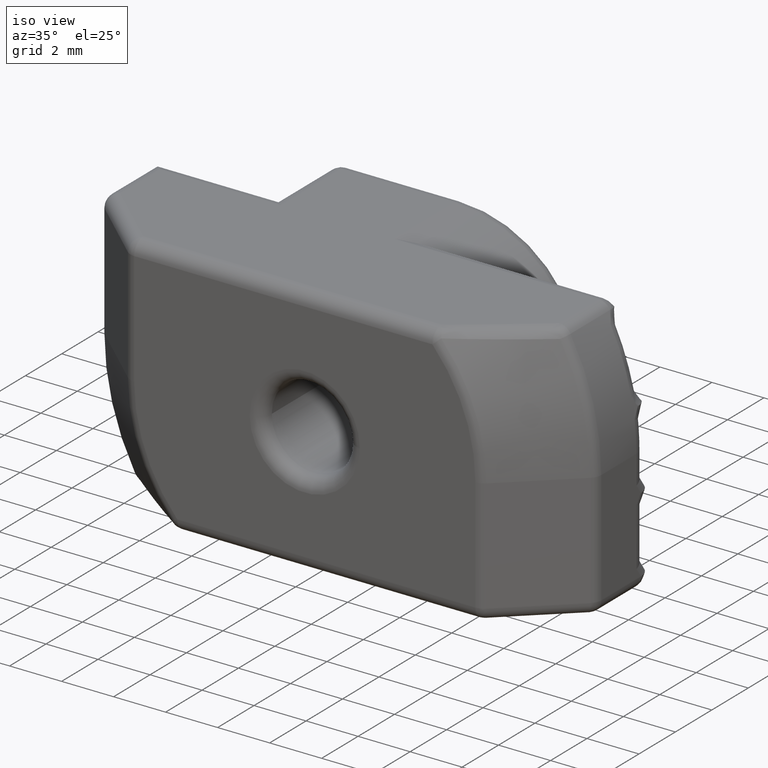
[diagram: clean part render]
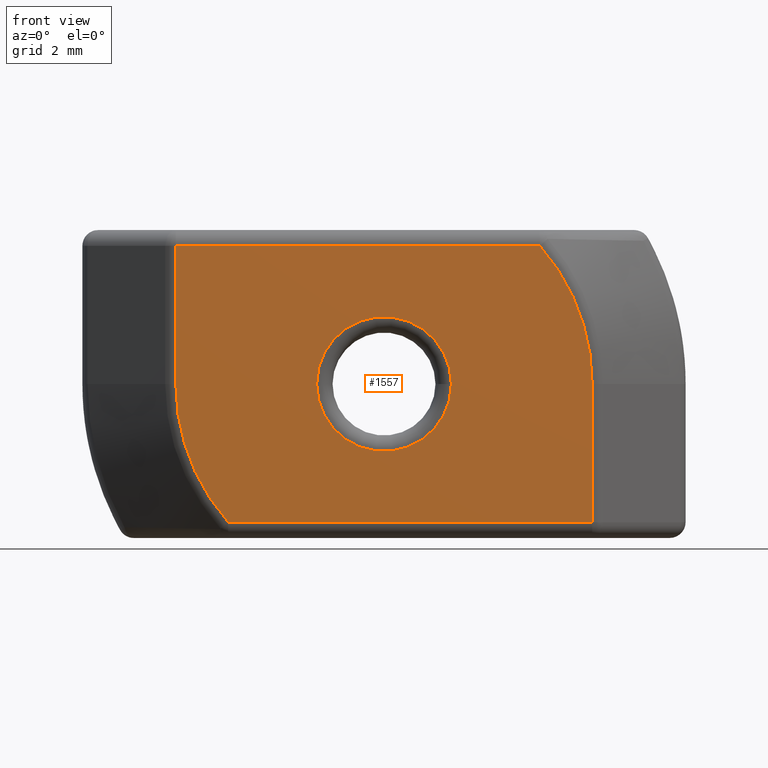
[diagram: tour spotlight — one face highlighted and labeled with its STEP entity id]
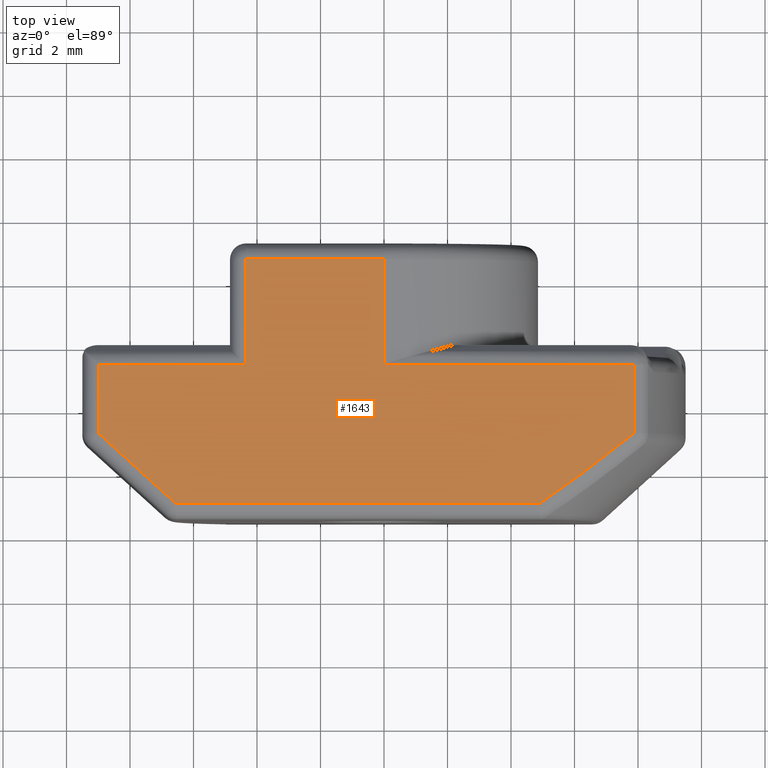
[diagram: tour spotlight — one face highlighted and labeled with its STEP entity id]
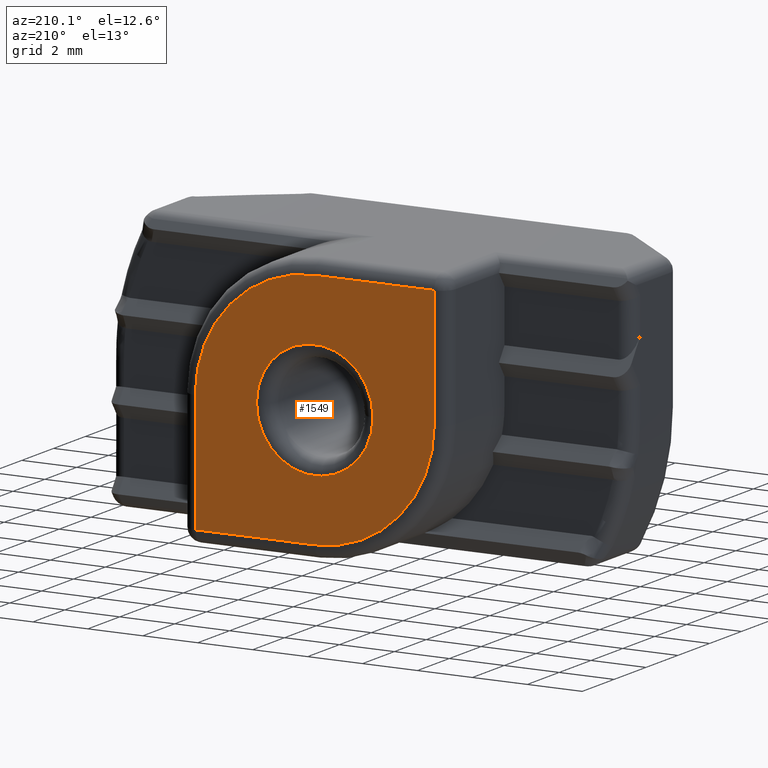
[diagram: tour spotlight — one face highlighted and labeled with its STEP entity id]
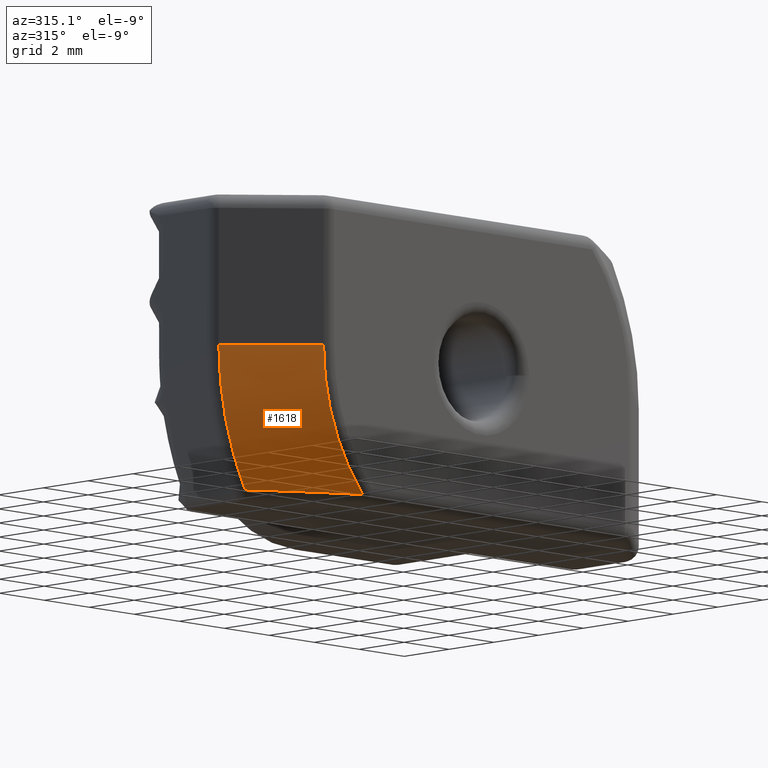
[diagram: tour spotlight — one face highlighted and labeled with its STEP entity id]
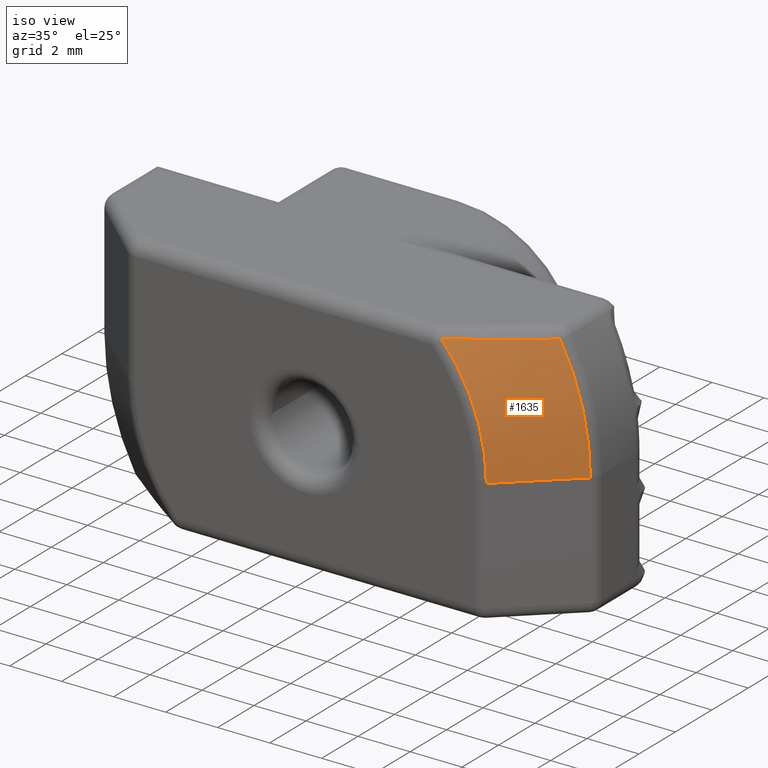
[diagram: tour spotlight — one face highlighted and labeled with its STEP entity id]
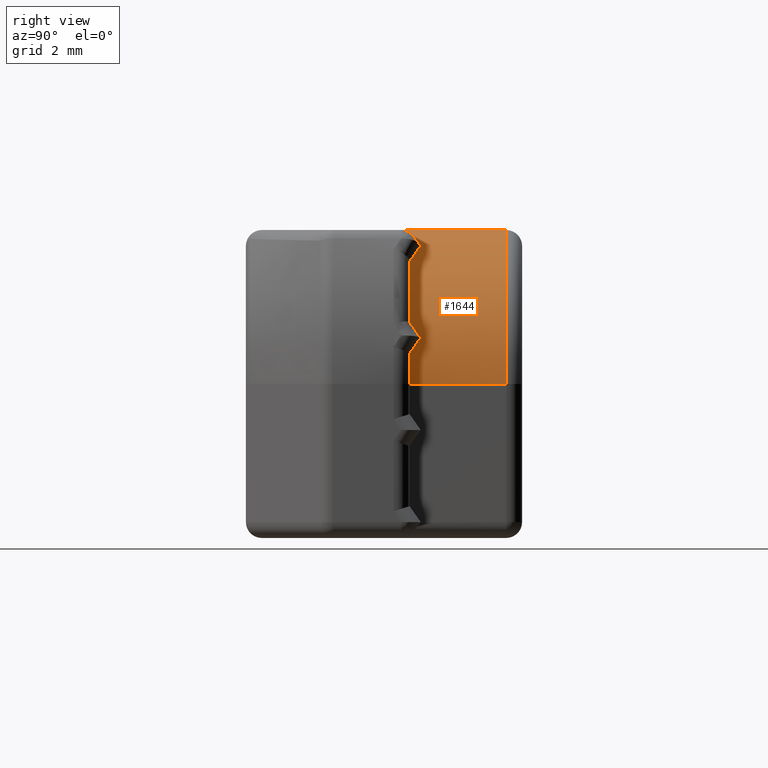
[diagram: tour spotlight — one face highlighted and labeled with its STEP entity id]
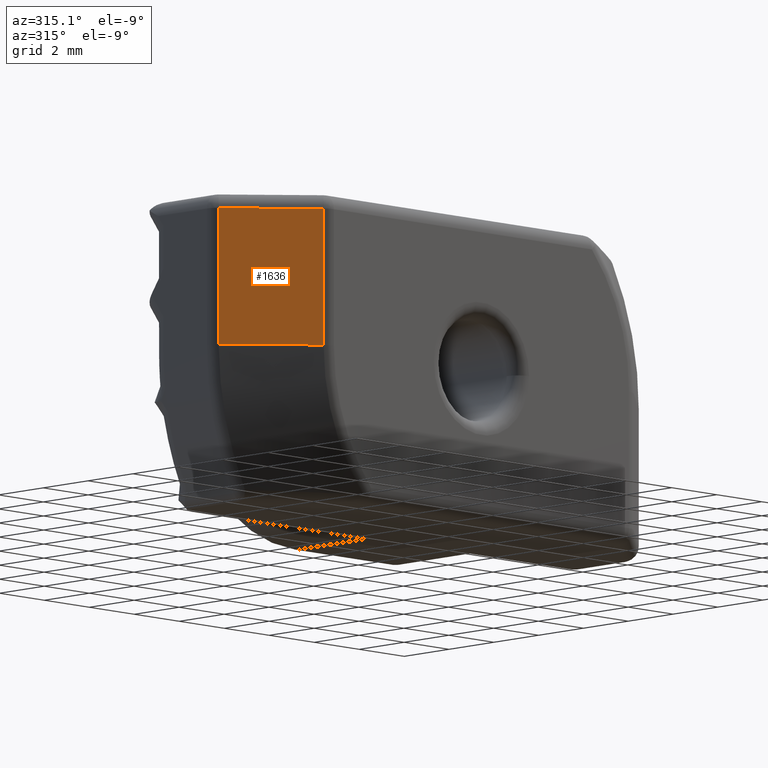
[diagram: tour spotlight — one face highlighted and labeled with its STEP entity id]
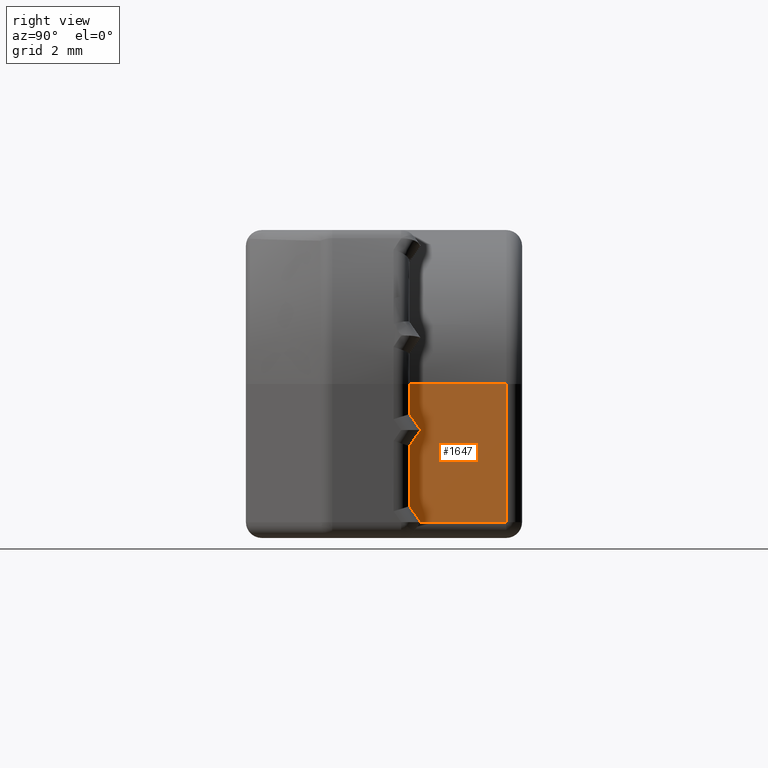
[diagram: tour spotlight — one face highlighted and labeled with its STEP entity id]
A machine part: a face-by-face anatomy tour. The part has 104 B-rep faces; the first image is the clean iso view, then the 8 largest visible faces are spotlighted one at a time (largest first), each with its STEP entity span.

Face 1 — front view, entity #1557. In plain terms, the highlighted planar face has unit normal (0, -1, 0).
Definition (entity closure, byte-faithful):
#70=FACE_BOUND('',#311,.T.);
#77=CIRCLE('',#1678,2.121);
#78=CIRCLE('',#1680,6.55669656263408);
#79=CIRCLE('',#1681,6.55669656263408);
#163=PLANE('',#1679);
#202=FACE_OUTER_BOUND('',#310,.T.);
#310=EDGE_LOOP('',(#1085,#1086,#1087,#1088,#1089,#1090));
#311=EDGE_LOOP('',(#1091));
#426=LINE('',#2463,#527);
#427=LINE('',#2467,#528);
#428=LINE('',#2469,#529);
#429=LINE('',#2472,#530);
#527=VECTOR('',#1943,4.35);
#528=VECTOR('',#1946,11.4625879000423);
#529=VECTOR('',#1947,4.35);
#530=VECTOR('',#1950,11.4625879000423);
#674=VERTEX_POINT('',#2458);
#675=VERTEX_POINT('',#2461);
#676=VERTEX_POINT('',#2462);
#677=VERTEX_POINT('',#2464);
#678=VERTEX_POINT('',#2466);
#679=VERTEX_POINT('',#2468);
#680=VERTEX_POINT('',#2470);
#824=EDGE_CURVE('',#674,#674,#77,.T.);
#825=EDGE_CURVE('',#675,#676,#426,.T.);
#826=EDGE_CURVE('',#677,#675,#78,.T.);
#827=EDGE_CURVE('',#678,#677,#427,.T.);
#828=EDGE_CURVE('',#679,#678,#428,.T.);
#829=EDGE_CURVE('',#680,#679,#79,.T.);
#830=EDGE_CURVE('',#676,#680,#429,.T.);
#1085=ORIENTED_EDGE('',*,*,#825,.F.);
#1086=ORIENTED_EDGE('',*,*,#826,.F.);
#1087=ORIENTED_EDGE('',*,*,#827,.F.);
#1088=ORIENTED_EDGE('',*,*,#828,.F.);
#1089=ORIENTED_EDGE('',*,*,#829,.F.);
#1090=ORIENTED_EDGE('',*,*,#830,.F.);
#1091=ORIENTED_EDGE('',*,*,#824,.F.);
#1557=ADVANCED_FACE('',(#202,#70),#163,.T.);
#1678=AXIS2_PLACEMENT_3D('',#2459,#1939,#1940);
#1679=AXIS2_PLACEMENT_3D('',#2460,#1941,#1942);
#1680=AXIS2_PLACEMENT_3D('',#2465,#1944,#1945);
#1681=AXIS2_PLACEMENT_3D('',#2471,#1948,#1949);
#1939=DIRECTION('center_axis',(0.,-1.,0.));
#1940=DIRECTION('ref_axis',(-1.,0.,0.));
#1941=DIRECTION('center_axis',(0.,-1.,0.));
#1942=DIRECTION('ref_axis',(1.,0.,0.));
#1943=DIRECTION('',(0.,0.,-1.));
#1944=DIRECTION('center_axis',(0.,1.,0.));
#1945=DIRECTION('ref_axis',(0.920735528751524,0.,0.390187244915376));
#1946=DIRECTION('',(1.,0.,0.));
#1947=DIRECTION('',(0.,0.,1.));
#1948=DIRECTION('center_axis',(0.,1.,0.));
#1949=DIRECTION('ref_axis',(-0.920735528751524,0.,-0.390187244915376));
#1950=DIRECTION('',(-1.,0.,0.));
#2458=CARTESIAN_POINT('',(2.121,-5.5,1.6475263668806E-15));
#2459=CARTESIAN_POINT('Origin',(1.66533453693773E-15,-5.5,1.38777878078145E-15));
#2460=CARTESIAN_POINT('Origin',(-6.75,-5.5,0.));
#2461=CARTESIAN_POINT('',(6.55669656263408,-5.5,0.));
#2462=CARTESIAN_POINT('',(6.55669656263408,-5.5,-4.35));
#2463=CARTESIAN_POINT('',(6.55669656263408,-5.5,0.));
#2464=CARTESIAN_POINT('',(4.90589133740827,-5.5,4.35));
#2465=CARTESIAN_POINT('Origin',(0.,-5.5,0.));
#2466=CARTESIAN_POINT('',(-6.55669656263408,-5.5,4.35));
#2467=CARTESIAN_POINT('',(-3.375,-5.5,4.35));
#2468=CARTESIAN_POINT('',(-6.55669656263408,-5.5,-2.77555756156289E-16));
#2469=CARTESIAN_POINT('',(-6.55669656263408,-5.5,0.));
#2470=CARTESIAN_POINT('',(-4.90589133740827,-5.5,-4.35));
#2471=CARTESIAN_POINT('Origin',(0.,-5.5,0.));
#2472=CARTESIAN_POINT('',(-3.375,-5.5,-4.35));

Face 2 — top view, entity #1643. In plain terms, the highlighted planar face has unit normal (0, 0, 1).
Definition (entity closure, byte-faithful):
#40=B_SPLINE_CURVE_WITH_KNOTS('',3,(#2794,#2795,#2796,#2797),
 .UNSPECIFIED.,.F.,.F.,(4,4),(-0.560943769347797,-0.189735518197095),
 .UNSPECIFIED.);
#186=PLANE('',#1852);
#288=FACE_OUTER_BOUND('',#397,.T.);
#397=EDGE_LOOP('',(#1463,#1464,#1465,#1466,#1467,#1468,#1469,#1470,#1471,
#1472));
#425=LINE('',#2455,#526);
#438=LINE('',#2652,#539);
#440=LINE('',#2735,#541);
#443=LINE('',#2752,#544);
#456=LINE('',#2839,#557);
#460=LINE('',#2886,#561);
#461=LINE('',#2888,#562);
#463=LINE('',#2957,#564);
#500=LINE('',#3293,#601);
#526=VECTOR('',#1934,2.16848727615338);
#539=VECTOR('',#1991,4.65);
#541=VECTOR('',#2053,7.87892759200134);
#544=VECTOR('',#2076,4.35);
#557=VECTOR('',#2153,2.16848727615342);
#561=VECTOR('',#2173,11.4625879000905);
#562=VECTOR('',#2176,3.31032778078669);
#564=VECTOR('',#2184,3.30202880640377);
#601=VECTOR('',#2363,3.31032778078669);
#672=VERTEX_POINT('',#2452);
#673=VERTEX_POINT('',#2454);
#703=VERTEX_POINT('',#2651);
#708=VERTEX_POINT('',#2663);
#709=VERTEX_POINT('',#2668);
#714=VERTEX_POINT('',#2714);
#718=VERTEX_POINT('',#2723);
#720=VERTEX_POINT('',#2728);
#724=VERTEX_POINT('',#2748);
#728=VERTEX_POINT('',#2768);
#822=EDGE_CURVE('',#672,#673,#425,.T.);
#857=EDGE_CURVE('',#673,#703,#438,.T.);
#883=EDGE_CURVE('',#720,#718,#440,.T.);
#892=EDGE_CURVE('',#709,#724,#443,.T.);
#903=EDGE_CURVE('',#728,#714,#40,.T.);
#925=EDGE_CURVE('',#718,#728,#456,.T.);
#934=EDGE_CURVE('',#714,#708,#460,.T.);
#935=EDGE_CURVE('',#703,#709,#461,.T.);
#942=EDGE_CURVE('',#708,#672,#463,.T.);
#1023=EDGE_CURVE('',#724,#720,#500,.T.);
#1463=ORIENTED_EDGE('',*,*,#1023,.F.);
#1464=ORIENTED_EDGE('',*,*,#892,.F.);
#1465=ORIENTED_EDGE('',*,*,#935,.F.);
#1466=ORIENTED_EDGE('',*,*,#857,.F.);
#1467=ORIENTED_EDGE('',*,*,#822,.F.);
#1468=ORIENTED_EDGE('',*,*,#942,.F.);
#1469=ORIENTED_EDGE('',*,*,#934,.F.);
#1470=ORIENTED_EDGE('',*,*,#903,.F.);
#1471=ORIENTED_EDGE('',*,*,#925,.F.);
#1472=ORIENTED_EDGE('',*,*,#883,.F.);
#1643=ADVANCED_FACE('',(#288),#186,.T.);
#1852=AXIS2_PLACEMENT_3D('',#3292,#2361,#2362);
#1934=DIRECTION('',(0.,1.,0.));
#1991=DIRECTION('',(1.,0.,0.));
#2053=DIRECTION('',(1.,-3.70719070359735E-16,0.));
#2076=DIRECTION('',(1.,0.,0.));
#2153=DIRECTION('',(0.,-1.,0.));
#2173=DIRECTION('',(-1.,0.,0.));
#2176=DIRECTION('',(0.,1.,0.));
#2184=DIRECTION('',(-0.739940073395944,0.672672793996312,0.));
#2361=DIRECTION('center_axis',(0.,0.,1.));
#2362=DIRECTION('ref_axis',(1.,0.,0.));
#2363=DIRECTION('',(0.,-1.,0.));
#2452=CARTESIAN_POINT('',(-9.,-2.77881505694007,4.85));
#2454=CARTESIAN_POINT('',(-9.,-0.610327780786692,4.85));
#2455=CARTESIAN_POINT('',(-9.,-0.70281034692952,4.85));
#2651=CARTESIAN_POINT('',(-4.35,-0.610327780786692,4.85));
#2652=CARTESIAN_POINT('',(-4.75,-0.610327780786692,4.85));
#2663=CARTESIAN_POINT('',(-6.55669656263408,-5.,4.85));
#2668=CARTESIAN_POINT('',(-4.35,2.7,4.85));
#2714=CARTESIAN_POINT('',(4.90589133745647,-5.,4.85));
#2723=CARTESIAN_POINT('',(7.87892759200134,-0.610327780786691,4.85));
#2728=CARTESIAN_POINT('',(5.55111512312578E-16,-0.610327780786689,4.85));
#2735=CARTESIAN_POINT('',(4.75,-0.61032778078669,4.85));
#2748=CARTESIAN_POINT('',(5.55111512312578E-16,2.7,4.85));
#2752=CARTESIAN_POINT('',(2.425,2.7,4.85));
#2768=CARTESIAN_POINT('',(7.87892759200129,-2.77881505694011,4.85));
#2794=CARTESIAN_POINT('Ctrl Pts',(7.87892759200144,-2.77881505693999,4.85));
#2795=CARTESIAN_POINT('Ctrl Pts',(6.91082613017333,-3.54927983668285,4.85));
#2796=CARTESIAN_POINT('Ctrl Pts',(5.92888942537849,-4.30415105034272,4.85));
#2797=CARTESIAN_POINT('Ctrl Pts',(4.90589133741964,-4.99999999999226,4.85));
#2839=CARTESIAN_POINT('',(7.87892759200134,-1.5,4.85));
#2886=CARTESIAN_POINT('',(-3.375,-5.,4.85));
#2888=CARTESIAN_POINT('',(-4.35,0.89718965307048,4.85));
#2957=CARTESIAN_POINT('',(-6.95977610000525,-4.6335640569353,4.85));
#3292=CARTESIAN_POINT('Origin',(0.,-1.40562069385904,4.85));
#3293=CARTESIAN_POINT('',(5.55111512312578E-16,3.2,4.85));

Face 3 — auxiliary view, entity #1549. In plain terms, the highlighted planar face has unit normal (0, 1, 0).
Definition (entity closure, byte-faithful):
#68=FACE_BOUND('',#301,.T.);
#72=CIRCLE('',#1658,2.121);
#74=CIRCLE('',#1662,4.35);
#75=CIRCLE('',#1663,4.35);
#159=PLANE('',#1661);
#194=FACE_OUTER_BOUND('',#300,.T.);
#300=EDGE_LOOP('',(#1048,#1049,#1050,#1051,#1052,#1053));
#301=EDGE_LOOP('',(#1054));
#414=LINE('',#2417,#515);
#415=LINE('',#2419,#516);
#416=LINE('',#2423,#517);
#417=LINE('',#2425,#518);
#515=VECTOR('',#1895,4.35);
#516=VECTOR('',#1896,4.35);
#517=VECTOR('',#1899,4.35);
#518=VECTOR('',#1900,4.35);
#657=VERTEX_POINT('',#2409);
#659=VERTEX_POINT('',#2415);
#660=VERTEX_POINT('',#2416);
#661=VERTEX_POINT('',#2418);
#662=VERTEX_POINT('',#2420);
#663=VERTEX_POINT('',#2422);
#664=VERTEX_POINT('',#2424);
#801=EDGE_CURVE('',#657,#657,#72,.T.);
#803=EDGE_CURVE('',#659,#660,#414,.T.);
#804=EDGE_CURVE('',#661,#659,#415,.T.);
#805=EDGE_CURVE('',#662,#661,#74,.T.);
#806=EDGE_CURVE('',#663,#662,#416,.T.);
#807=EDGE_CURVE('',#664,#663,#417,.T.);
#808=EDGE_CURVE('',#660,#664,#75,.T.);
#1048=ORIENTED_EDGE('',*,*,#803,.F.);
#1049=ORIENTED_EDGE('',*,*,#804,.F.);
#1050=ORIENTED_EDGE('',*,*,#805,.F.);
#1051=ORIENTED_EDGE('',*,*,#806,.F.);
#1052=ORIENTED_EDGE('',*,*,#807,.F.);
#1053=ORIENTED_EDGE('',*,*,#808,.F.);
#1054=ORIENTED_EDGE('',*,*,#801,.F.);
#1549=ADVANCED_FACE('',(#194,#68),#159,.T.);
#1658=AXIS2_PLACEMENT_3D('',#2410,#1887,#1888);
#1661=AXIS2_PLACEMENT_3D('',#2414,#1893,#1894);
#1662=AXIS2_PLACEMENT_3D('',#2421,#1897,#1898);
#1663=AXIS2_PLACEMENT_3D('',#2426,#1901,#1902);
#1887=DIRECTION('center_axis',(0.,1.,0.));
#1888=DIRECTION('ref_axis',(1.,0.,-1.22464679914735E-16));
#1893=DIRECTION('center_axis',(0.,1.,0.));
#1894=DIRECTION('ref_axis',(-1.,0.,0.));
#1895=DIRECTION('',(0.,0.,1.));
#1896=DIRECTION('',(1.,0.,0.));
#1897=DIRECTION('center_axis',(0.,-1.,0.));
#1898=DIRECTION('ref_axis',(-0.707106781186547,0.,-0.707106781186547));
#1899=DIRECTION('',(0.,0.,-1.));
#1900=DIRECTION('',(-1.,0.,0.));
#1901=DIRECTION('center_axis',(0.,-1.,0.));
#1902=DIRECTION('ref_axis',(0.707106781186547,0.,0.707106781186547));
#2409=CARTESIAN_POINT('',(-2.121,3.2,1.90727395297975E-15));
#2410=CARTESIAN_POINT('Origin',(1.66533453693773E-15,3.2,1.38777878078145E-15));
#2414=CARTESIAN_POINT('Origin',(4.85,3.2,0.));
#2415=CARTESIAN_POINT('',(4.35,3.2,-4.35));
#2416=CARTESIAN_POINT('',(4.35,3.2,0.));
#2417=CARTESIAN_POINT('',(4.35,3.2,0.));
#2418=CARTESIAN_POINT('',(-2.77555756156289E-16,3.2,-4.35));
#2419=CARTESIAN_POINT('',(2.425,3.2,-4.35));
#2420=CARTESIAN_POINT('',(-4.35,3.2,0.));
#2421=CARTESIAN_POINT('Origin',(0.,3.2,-5.55111512312578E-16));
#2422=CARTESIAN_POINT('',(-4.35,3.2,4.35));
#2423=CARTESIAN_POINT('',(-4.35,3.2,0.));
#2424=CARTESIAN_POINT('',(8.32667268468867E-16,3.2,4.35));
#2425=CARTESIAN_POINT('',(2.425,3.2,4.35));
#2426=CARTESIAN_POINT('Origin',(5.55111512312578E-16,3.2,0.));

Face 4 — auxiliary view, entity #1618. In plain terms, the highlighted conical surface has half-angle 47.726 deg.
Definition (entity closure, byte-faithful):
#15=CONICAL_SURFACE('',#1815,8.125,47.7263109939062);
#38=B_SPLINE_CURVE_WITH_KNOTS('',3,(#2709,#2710,#2711,#2712),
 .UNSPECIFIED.,.F.,.F.,(4,4),(0.189735518197095,0.560943769347798),
 .UNSPECIFIED.);
#96=CIRCLE('',#1717,6.89303295963223);
#130=CIRCLE('',#1785,9.33633639699816);
#263=FACE_OUTER_BOUND('',#372,.T.);
#372=EDGE_LOOP('',(#1330,#1331,#1332,#1333));
#475=LINE('',#3214,#576);
#576=VECTOR('',#2264,3.30202880640377);
#706=VERTEX_POINT('',#2658);
#712=VERTEX_POINT('',#2676);
#713=VERTEX_POINT('',#2680);
#746=VERTEX_POINT('',#2960);
#872=EDGE_CURVE('',#713,#712,#96,.T.);
#875=EDGE_CURVE('',#712,#706,#38,.T.);
#946=EDGE_CURVE('',#706,#746,#130,.T.);
#986=EDGE_CURVE('',#713,#746,#475,.T.);
#1330=ORIENTED_EDGE('',*,*,#946,.F.);
#1331=ORIENTED_EDGE('',*,*,#875,.F.);
#1332=ORIENTED_EDGE('',*,*,#872,.F.);
#1333=ORIENTED_EDGE('',*,*,#986,.T.);
#1618=ADVANCED_FACE('',(#263),#15,.T.);
#1717=AXIS2_PLACEMENT_3D('',#2682,#2030,#2031);
#1785=AXIS2_PLACEMENT_3D('',#2963,#2192,#2193);
#1815=AXIS2_PLACEMENT_3D('',#3213,#2262,#2263);
#2030=DIRECTION('center_axis',(0.,-1.,0.));
#2031=DIRECTION('ref_axis',(-0.920735528751524,0.,-0.390187244915376));
#2192=DIRECTION('center_axis',(0.,1.,0.));
#2193=DIRECTION('ref_axis',(-0.96432933404487,0.,-0.264705374899297));
#2262=DIRECTION('center_axis',(0.,1.,0.));
#2263=DIRECTION('ref_axis',(-1.,0.,0.));
#2264=DIRECTION('',(-0.739940073395944,0.672672793996312,0.));
#2658=CARTESIAN_POINT('',(-8.17336871627949,-3.14878509363804,-4.51256259188238));
#2676=CARTESIAN_POINT('',(-5.15754699979899,-5.36997003669024,-4.57314031356551));
#2680=CARTESIAN_POINT('',(-6.89303295963223,-5.36997003669797,0.));
#2682=CARTESIAN_POINT('Origin',(0.,-5.36997003669797,2.77555756156289E-16));
#2709=CARTESIAN_POINT('Ctrl Pts',(-5.15754699979899,-5.36997003669024,-4.57314031356551));
#2710=CARTESIAN_POINT('Ctrl Pts',(-6.2036429585254,-4.6741210870407,-4.54709074020656));
#2711=CARTESIAN_POINT('Ctrl Pts',(-7.19681552222486,-3.91924987338082,-4.52787077262733));
#2712=CARTESIAN_POINT('Ctrl Pts',(-8.17336871627957,-3.14878509363795,-4.51256259188244));
#2960=CARTESIAN_POINT('',(-9.33633639699816,-3.14878509363804,0.));
#2963=CARTESIAN_POINT('Origin',(0.,-3.14878509363804,6.93889390390723E-16));
#3213=CARTESIAN_POINT('Origin',(0.,-4.25,0.));
#3214=CARTESIAN_POINT('',(-8.125,-4.25,0.));

Face 5 — iso view, entity #1635. In plain terms, the highlighted conical surface has half-angle 47.726 deg.
Definition (entity closure, byte-faithful):
#16=CONICAL_SURFACE('',#1839,8.125,47.7263109939063);
#41=B_SPLINE_CURVE_WITH_KNOTS('',3,(#2798,#2799,#2800,#2801),
 .UNSPECIFIED.,.F.,.F.,(4,4),(0.189735518197095,0.560943769347797),
 .UNSPECIFIED.);
#113=CIRCLE('',#1745,6.89303295963223);
#122=CIRCLE('',#1759,9.33633639699816);
#280=FACE_OUTER_BOUND('',#389,.T.);
#389=EDGE_LOOP('',(#1427,#1428,#1429,#1430));
#476=LINE('',#3216,#577);
#577=VECTOR('',#2267,3.30202880640377);
#715=VERTEX_POINT('',#2716);
#727=VERTEX_POINT('',#2760);
#730=VERTEX_POINT('',#2771);
#735=VERTEX_POINT('',#2811);
#898=EDGE_CURVE('',#727,#715,#113,.T.);
#904=EDGE_CURVE('',#715,#730,#41,.T.);
#912=EDGE_CURVE('',#730,#735,#122,.T.);
#987=EDGE_CURVE('',#727,#735,#476,.T.);
#1427=ORIENTED_EDGE('',*,*,#898,.F.);
#1428=ORIENTED_EDGE('',*,*,#987,.T.);
#1429=ORIENTED_EDGE('',*,*,#912,.F.);
#1430=ORIENTED_EDGE('',*,*,#904,.F.);
#1635=ADVANCED_FACE('',(#280),#16,.T.);
#1745=AXIS2_PLACEMENT_3D('',#2764,#2092,#2093);
#1759=AXIS2_PLACEMENT_3D('',#2817,#2123,#2124);
#1839=AXIS2_PLACEMENT_3D('',#3270,#2330,#2331);
#2092=DIRECTION('center_axis',(0.,-1.,0.));
#2093=DIRECTION('ref_axis',(0.920735528751524,0.,0.390187244915376));
#2123=DIRECTION('center_axis',(4.1597613613867E-17,1.,7.30748429529601E-17));
#2124=DIRECTION('ref_axis',(0.96432933404487,-5.94571027336868E-17,0.264705374899297));
#2267=DIRECTION('',(0.739940073395944,0.672672793996312,0.));
#2330=DIRECTION('center_axis',(0.,1.,0.));
#2331=DIRECTION('ref_axis',(1.,0.,0.));
#2716=CARTESIAN_POINT('',(5.15754699979898,-5.36997003669024,4.57314031356551));
#2760=CARTESIAN_POINT('',(6.89303295963223,-5.36997003669797,0.));
#2764=CARTESIAN_POINT('Origin',(0.,-5.36997003669797,2.77555756156289E-16));
#2771=CARTESIAN_POINT('',(8.17336871627949,-3.14878509363804,4.51256259188238));
#2798=CARTESIAN_POINT('Ctrl Pts',(5.15754699979898,-5.36997003669024,4.57314031356551));
#2799=CARTESIAN_POINT('Ctrl Pts',(6.2036429585254,-4.67412108704069,4.54709074020656));
#2800=CARTESIAN_POINT('Ctrl Pts',(7.19681552222486,-3.91924987338082,4.52787077262733));
#2801=CARTESIAN_POINT('Ctrl Pts',(8.17336871627957,-3.14878509363796,4.51256259188244));
#2811=CARTESIAN_POINT('',(9.33633639699816,-3.14878509363804,0.));
#2817=CARTESIAN_POINT('Origin',(0.,-3.14878509363804,-4.16333634234434E-16));
#3216=CARTESIAN_POINT('',(8.125,-4.25,0.));
#3270=CARTESIAN_POINT('Origin',(0.,-4.25,0.));

Face 6 — right view, entity #1644. In plain terms, the highlighted cylindrical surface (partial cylindrical patch) has radius 4.85 mm, axis along (0, -1, 0).
Definition (entity closure, byte-faithful):
#39=B_SPLINE_CURVE_WITH_KNOTS('',3,(#2729,#2730,#2731,#2732,#2733,#2734),
 .UNSPECIFIED.,.F.,.F.,(4,2,4),(0.,0.117122205571967,0.141644163008788),
 .UNSPECIFIED.);
#108=CIRCLE('',#1736,4.85);
#141=CIRCLE('',#1818,4.85);
#144=CIRCLE('',#1847,4.85);
#289=FACE_OUTER_BOUND('',#398,.T.);
#398=EDGE_LOOP('',(#1473,#1474,#1475,#1476,#1477,#1478,#1479,#1480,#1481,
#1482));
#500=LINE('',#3293,#601);
#501=LINE('',#3295,#602);
#601=VECTOR('',#2363,3.31032778078669);
#602=VECTOR('',#2366,3.05000000000001);
#639=ELLIPSE('',#1842,5.92017947363084,4.85);
#640=ELLIPSE('',#1844,5.92017947363084,4.85);
#641=ELLIPSE('',#1849,5.92017947363084,4.85);
#642=ELLIPSE('',#1851,5.92017947363085,4.85);
#719=VERTEX_POINT('',#2727);
#720=VERTEX_POINT('',#2728);
#723=VERTEX_POINT('',#2744);
#724=VERTEX_POINT('',#2748);
#769=VERTEX_POINT('',#3220);
#770=VERTEX_POINT('',#3222);
#781=VERTEX_POINT('',#3273);
#782=VERTEX_POINT('',#3275);
#783=VERTEX_POINT('',#3283);
#784=VERTEX_POINT('',#3287);
#882=EDGE_CURVE('',#719,#720,#39,.F.);
#891=EDGE_CURVE('',#724,#723,#108,.T.);
#990=EDGE_CURVE('',#770,#769,#141,.T.);
#1014=EDGE_CURVE('',#782,#781,#639,.T.);
#1016=EDGE_CURVE('',#781,#770,#640,.T.);
#1018=EDGE_CURVE('',#783,#782,#144,.T.);
#1020=EDGE_CURVE('',#784,#783,#641,.T.);
#1022=EDGE_CURVE('',#719,#784,#642,.T.);
#1023=EDGE_CURVE('',#724,#720,#500,.T.);
#1024=EDGE_CURVE('',#769,#723,#501,.T.);
#1473=ORIENTED_EDGE('',*,*,#891,.F.);
#1474=ORIENTED_EDGE('',*,*,#1023,.T.);
#1475=ORIENTED_EDGE('',*,*,#882,.F.);
#1476=ORIENTED_EDGE('',*,*,#1022,.T.);
#1477=ORIENTED_EDGE('',*,*,#1020,.T.);
#1478=ORIENTED_EDGE('',*,*,#1018,.T.);
#1479=ORIENTED_EDGE('',*,*,#1014,.T.);
#1480=ORIENTED_EDGE('',*,*,#1016,.T.);
#1481=ORIENTED_EDGE('',*,*,#990,.T.);
#1482=ORIENTED_EDGE('',*,*,#1024,.T.);
#1542=CYLINDRICAL_SURFACE('',#1853,4.85);
#1644=ADVANCED_FACE('',(#289),#1542,.T.);
#1736=AXIS2_PLACEMENT_3D('',#2750,#2072,#2073);
#1818=AXIS2_PLACEMENT_3D('',#3223,#2272,#2273);
#1842=AXIS2_PLACEMENT_3D('',#3276,#2337,#2338);
#1844=AXIS2_PLACEMENT_3D('',#3279,#2342,#2343);
#1847=AXIS2_PLACEMENT_3D('',#3284,#2349,#2350);
#1849=AXIS2_PLACEMENT_3D('',#3288,#2354,#2355);
#1851=AXIS2_PLACEMENT_3D('',#3291,#2359,#2360);
#1853=AXIS2_PLACEMENT_3D('',#3294,#2364,#2365);
#2072=DIRECTION('center_axis',(0.,1.,0.));
#2073=DIRECTION('ref_axis',(0.707106781186548,0.,0.707106781186548));
#2272=DIRECTION('center_axis',(3.70074341541719E-16,1.,0.));
#2273=DIRECTION('ref_axis',(1.14455981920119E-16,0.,-1.));
#2337=DIRECTION('center_axis',(3.03176713556042E-16,0.819231920519041,0.573462344363328));
#2338=DIRECTION('ref_axis',(9.37659938833119E-17,0.573462344363328,-0.819231920519041));
#2342=DIRECTION('center_axis',(3.03176713556042E-16,0.819231920519041,-0.573462344363328));
#2343=DIRECTION('ref_axis',(9.37659938833119E-17,-0.573462344363328,-0.819231920519041));
#2349=DIRECTION('center_axis',(3.70074341541719E-16,1.,0.));
#2350=DIRECTION('ref_axis',(1.14455981920119E-16,0.,-1.));
#2354=DIRECTION('center_axis',(3.03176713556042E-16,0.819231920519041,-0.573462344363328));
#2355=DIRECTION('ref_axis',(9.37659938833119E-17,-0.573462344363328,-0.819231920519041));
#2359=DIRECTION('center_axis',(3.03704895983839E-16,0.81923192051904,0.573462344363328));
#2360=DIRECTION('ref_axis',(9.37659938833119E-17,0.573462344363328,-0.81923192051904));
#2363=DIRECTION('',(0.,-1.,0.));
#2364=DIRECTION('center_axis',(0.,-1.,0.));
#2365=DIRECTION('ref_axis',(1.14455981920119E-16,0.,-1.));
#2366=DIRECTION('',(0.,1.,0.));
#2727=CARTESIAN_POINT('',(1.42240080037901,-0.200711820527165,4.63673117218166));
#2728=CARTESIAN_POINT('',(5.55111512312578E-16,-0.610327780786689,4.85));
#2729=CARTESIAN_POINT('Ctrl Pts',(5.55111512312578E-16,-0.610327780786689,
4.85));
#2730=CARTESIAN_POINT('Ctrl Pts',(0.371716608226999,-0.490976770774601,
4.85));
#2731=CARTESIAN_POINT('Ctrl Pts',(0.814991753501895,-0.349276636943477,
4.79605563734333));
#2732=CARTESIAN_POINT('Ctrl Pts',(1.25984388067052,-0.237407130615798,4.68418613101566));
#2733=CARTESIAN_POINT('Ctrl Pts',(1.34039777497144,-0.218320954041555,4.66188707720222));
#2734=CARTESIAN_POINT('Ctrl Pts',(1.42240080037901,-0.200711820527168,4.63673117218166));
#2744=CARTESIAN_POINT('',(4.85,2.7,0.));
#2748=CARTESIAN_POINT('',(5.55111512312578E-16,2.7,4.85));
#2750=CARTESIAN_POINT('Origin',(5.55111512312578E-16,2.7,0.));
#3220=CARTESIAN_POINT('',(4.85,-0.350000000000006,0.));
#3222=CARTESIAN_POINT('',(4.75604878023765,-0.350000000000006,0.95));
#3223=CARTESIAN_POINT('Origin',(5.55111512312578E-16,-0.350000000000006,
0.));
#3273=CARTESIAN_POINT('',(4.62817458616245,-8.88178419700125E-15,1.45));
#3275=CARTESIAN_POINT('',(4.4407206622349,-0.350000000000006,1.95));
#3276=CARTESIAN_POINT('Origin',(5.55111512312578E-16,1.015,0.));
#3279=CARTESIAN_POINT('Origin',(5.55111512312578E-16,-1.015,0.));
#3283=CARTESIAN_POINT('',(2.94957624075053,-0.350000000000001,3.85));
#3284=CARTESIAN_POINT('Origin',(5.55111512312578E-16,-0.350000000000006,
0.));
#3287=CARTESIAN_POINT('',(2.14476105895272,-4.44089209850063E-15,4.35));
#3288=CARTESIAN_POINT('Origin',(5.55111512312578E-16,-3.045,0.));
#3291=CARTESIAN_POINT('Origin',(5.55111512312578E-16,3.045,0.));
#3293=CARTESIAN_POINT('',(5.55111512312578E-16,3.2,4.85));
#3294=CARTESIAN_POINT('Origin',(5.55111512312578E-16,3.2,0.));
#3295=CARTESIAN_POINT('',(4.85,27.4256756099546,0.));

Face 7 — auxiliary view, entity #1636. In plain terms, the highlighted planar face has unit normal (-0.6727, -0.7399, 0).
Definition (entity closure, byte-faithful):
#179=PLANE('',#1840);
#281=FACE_OUTER_BOUND('',#390,.T.);
#390=EDGE_LOOP('',(#1431,#1432,#1433,#1434));
#439=LINE('',#2684,#540);
#464=LINE('',#2958,#565);
#465=LINE('',#2965,#566);
#475=LINE('',#3214,#576);
#540=VECTOR('',#2034,4.35);
#565=VECTOR('',#2185,3.30202880640377);
#566=VECTOR('',#2196,4.35);
#576=VECTOR('',#2264,3.30202880640377);
#702=VERTEX_POINT('',#2647);
#707=VERTEX_POINT('',#2662);
#713=VERTEX_POINT('',#2680);
#746=VERTEX_POINT('',#2960);
#873=EDGE_CURVE('',#707,#713,#439,.T.);
#943=EDGE_CURVE('',#702,#707,#464,.T.);
#947=EDGE_CURVE('',#746,#702,#465,.T.);
#986=EDGE_CURVE('',#713,#746,#475,.T.);
#1431=ORIENTED_EDGE('',*,*,#947,.F.);
#1432=ORIENTED_EDGE('',*,*,#986,.F.);
#1433=ORIENTED_EDGE('',*,*,#873,.F.);
#1434=ORIENTED_EDGE('',*,*,#943,.F.);
#1636=ADVANCED_FACE('',(#281),#179,.T.);
#1840=AXIS2_PLACEMENT_3D('',#3271,#2332,#2333);
#2034=DIRECTION('',(0.,0.,-1.));
#2185=DIRECTION('',(0.739940073395944,-0.672672793996312,0.));
#2196=DIRECTION('',(0.,0.,1.));
#2264=DIRECTION('',(-0.739940073395944,0.672672793996312,0.));
#2332=DIRECTION('center_axis',(-0.672672793996312,-0.739940073395944,0.));
#2333=DIRECTION('ref_axis',(0.739940073395944,-0.672672793996312,0.));
#2647=CARTESIAN_POINT('',(-9.33633639699816,-3.14878509363804,4.35));
#2662=CARTESIAN_POINT('',(-6.89303295963223,-5.36997003669797,4.35));
#2680=CARTESIAN_POINT('',(-6.89303295963223,-5.36997003669797,0.));
#2684=CARTESIAN_POINT('',(-6.89303295963223,-5.36997003669797,0.));
#2958=CARTESIAN_POINT('',(-7.29611249700341,-5.00353409363327,4.35));
#2960=CARTESIAN_POINT('',(-9.33633639699816,-3.14878509363804,0.));
#2965=CARTESIAN_POINT('',(-9.33633639699816,-3.14878509363804,0.));
#3214=CARTESIAN_POINT('',(-8.125,-4.25,0.));
#3271=CARTESIAN_POINT('Origin',(-9.5,-3.,0.));

Face 8 — right view, entity #1647. In plain terms, the highlighted planar face has unit normal (1, 0, 0).
Definition (entity closure, byte-faithful):
#188=PLANE('',#1856);
#292=FACE_OUTER_BOUND('',#401,.T.);
#401=EDGE_LOOP('',(#1500,#1501,#1502,#1503,#1504,#1505,#1506,#1507));
#433=LINE('',#2486,#534);
#442=LINE('',#2746,#543);
#455=LINE('',#2836,#556);
#478=LINE('',#3221,#579);
#481=LINE('',#3228,#582);
#483=LINE('',#3232,#584);
#484=LINE('',#3234,#585);
#501=LINE('',#3295,#602);
#534=VECTOR('',#1962,0.610327780786685);
#543=VECTOR('',#2067,4.35);
#556=VECTOR('',#2148,2.7);
#579=VECTOR('',#2271,0.95);
#582=VECTOR('',#2278,0.610327780786685);
#584=VECTOR('',#2282,0.610327780786685);
#585=VECTOR('',#2285,1.9);
#602=VECTOR('',#2366,3.05000000000001);
#685=VERTEX_POINT('',#2483);
#686=VERTEX_POINT('',#2485);
#722=VERTEX_POINT('',#2740);
#723=VERTEX_POINT('',#2744);
#768=VERTEX_POINT('',#3218);
#769=VERTEX_POINT('',#3220);
#771=VERTEX_POINT('',#3226);
#772=VERTEX_POINT('',#3230);
#836=EDGE_CURVE('',#685,#686,#433,.T.);
#889=EDGE_CURVE('',#723,#722,#442,.T.);
#923=EDGE_CURVE('',#722,#685,#455,.T.);
#989=EDGE_CURVE('',#768,#769,#478,.T.);
#993=EDGE_CURVE('',#771,#768,#481,.T.);
#995=EDGE_CURVE('',#772,#771,#483,.T.);
#996=EDGE_CURVE('',#686,#772,#484,.T.);
#1024=EDGE_CURVE('',#769,#723,#501,.T.);
#1500=ORIENTED_EDGE('',*,*,#889,.F.);
#1501=ORIENTED_EDGE('',*,*,#1024,.F.);
#1502=ORIENTED_EDGE('',*,*,#989,.F.);
#1503=ORIENTED_EDGE('',*,*,#993,.F.);
#1504=ORIENTED_EDGE('',*,*,#995,.F.);
#1505=ORIENTED_EDGE('',*,*,#996,.F.);
#1506=ORIENTED_EDGE('',*,*,#836,.F.);
#1507=ORIENTED_EDGE('',*,*,#923,.F.);
#1647=ADVANCED_FACE('',(#292),#188,.T.);
#1856=AXIS2_PLACEMENT_3D('',#3299,#2372,#2373);
#1962=DIRECTION('',(0.,-0.573462344363329,0.81923192051904));
#2067=DIRECTION('',(0.,0.,-1.));
#2148=DIRECTION('',(0.,-1.,0.));
#2271=DIRECTION('',(0.,0.,1.));
#2278=DIRECTION('',(0.,-0.573462344363328,0.819231920519041));
#2282=DIRECTION('',(0.,0.573462344363328,0.819231920519041));
#2285=DIRECTION('',(0.,2.92163953848725E-16,1.));
#2366=DIRECTION('',(0.,1.,0.));
#2372=DIRECTION('center_axis',(1.,0.,0.));
#2373=DIRECTION('ref_axis',(0.,1.,0.));
#2483=CARTESIAN_POINT('',(4.85,-4.94049245958195E-15,-4.35));
#2485=CARTESIAN_POINT('',(4.85,-0.350000000000005,-3.85));
#2486=CARTESIAN_POINT('',(4.85,-0.480956375838931,-3.66291946308725));
#2740=CARTESIAN_POINT('',(4.85,2.7,-4.35));
#2744=CARTESIAN_POINT('',(4.85,2.7,0.));
#2746=CARTESIAN_POINT('',(4.85,2.7,0.));
#2836=CARTESIAN_POINT('',(4.85,-0.70281034692952,-4.35));
#3218=CARTESIAN_POINT('',(4.85,-0.350000000000005,-0.95));
#3220=CARTESIAN_POINT('',(4.85,-0.350000000000006,0.));
#3221=CARTESIAN_POINT('',(4.85,-0.350000000000005,-1.6875));
#3226=CARTESIAN_POINT('',(4.85,-4.94049245958195E-15,-1.45));
#3228=CARTESIAN_POINT('',(4.85,0.200251677852344,-1.73607382550336));
#3230=CARTESIAN_POINT('',(4.85,-0.350000000000005,-1.95));
#3232=CARTESIAN_POINT('',(4.85,-0.432802013422824,-2.06828859060403));
#3234=CARTESIAN_POINT('',(4.85,-0.350000000000005,-3.1375));
#3295=CARTESIAN_POINT('',(4.85,27.4256756099546,0.));
#3299=CARTESIAN_POINT('Origin',(4.85,-2.96976848793233E-16,0.));